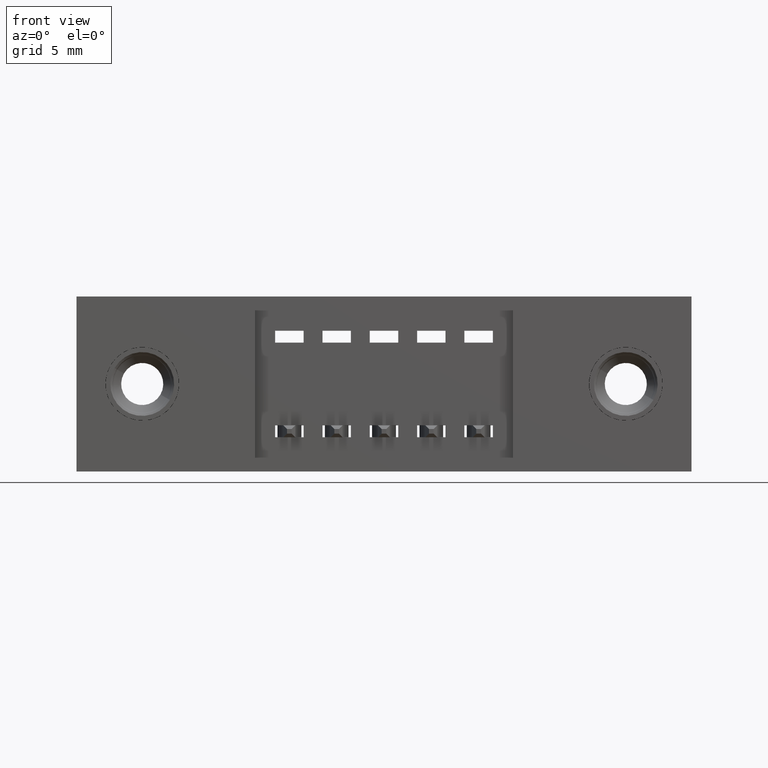
[diagram: clean part render]
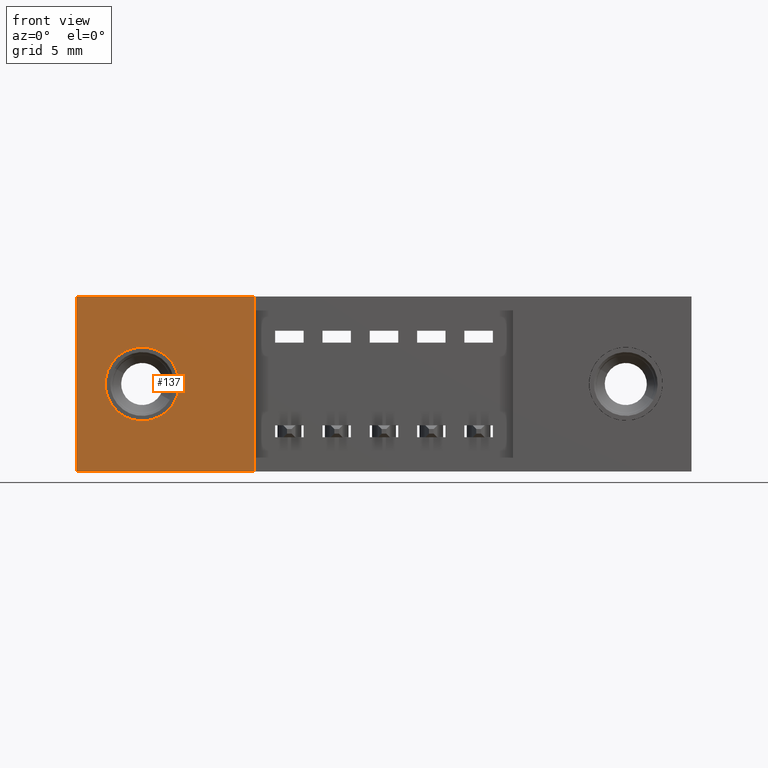
[diagram: same view with one face highlighted and labeled with its STEP entity id]
A machine part, front view. The second image highlights one B-rep face of the part: STEP entity #137.
In plain terms, the highlighted planar face has unit normal (0, -1, 0).
Its self-contained STEP definition (entity closure, byte-faithful):
#94 = LINE ( 'NONE', #6822, #7232 ) ;
#121 = EDGE_CURVE ( 'NONE', #614, #8031, #5915, .T. ) ;
#137 = ADVANCED_FACE ( 'NONE', ( #7467, #618 ), #7988, .T. ) ;
#232 = EDGE_CURVE ( 'NONE', #3549, #614, #737, .T. ) ;
#269 = CARTESIAN_POINT ( 'NONE',  ( 0.3770000000000000600, 0.0000000000000000000, 0.0000000000000000000 ) ) ;
#417 = EDGE_CURVE ( 'NONE', #3968, #3549, #1947, .T. ) ;
#456 = DIRECTION ( 'NONE',  ( 0.0000000000000000000, -0.0000000000000000000, -1.000000000000000000 ) ) ;
#545 = DIRECTION ( 'NONE',  ( 0.0000000000000000000, 1.000000000000000000, 0.0000000000000000000 ) ) ;
#614 = VERTEX_POINT ( 'NONE', #6757 ) ;
#618 = FACE_OUTER_BOUND ( 'NONE', #2394, .T. ) ;
#737 = LINE ( 'NONE', #7717, #8003 ) ;
#829 = EDGE_CURVE ( 'NONE', #8031, #3968, #94, .T. ) ;
#892 = ORIENTED_EDGE ( 'NONE', *, *, #829, .F. ) ;
#1947 = LINE ( 'NONE', #5838, #7049 ) ;
#2150 = CARTESIAN_POINT ( 'NONE',  ( 0.1390000000000000100, 0.0000000000000000000, -0.1850000000000000000 ) ) ;
#2394 = EDGE_LOOP ( 'NONE', ( #7018, #892, #3475, #4116 ) ) ;
#2828 = DIRECTION ( 'NONE',  ( 0.0000000000000000000, 0.0000000000000000000, 1.000000000000000000 ) ) ;
#3325 = DIRECTION ( 'NONE',  ( 0.0000000000000000000, -1.000000000000000000, 0.0000000000000000000 ) ) ;
#3435 = DIRECTION ( 'NONE',  ( -0.0000000000000000000, -0.0000000000000000000, -1.000000000000000000 ) ) ;
#3475 = ORIENTED_EDGE ( 'NONE', *, *, #121, .F. ) ;
#3549 = VERTEX_POINT ( 'NONE', #7531 ) ;
#3866 = VERTEX_POINT ( 'NONE', #7762 ) ;
#3908 = CARTESIAN_POINT ( 'NONE',  ( 0.1390000000000000400, 0.0000000000000000000, -0.2630000000000000100 ) ) ;
#3968 = VERTEX_POINT ( 'NONE', #269 ) ;
#3992 = CARTESIAN_POINT ( 'NONE',  ( 0.0000000000000000000, 0.0000000000000000000, -0.3700000000000000000 ) ) ;
#4035 = ORIENTED_EDGE ( 'NONE', *, *, #8430, .T. ) ;
#4116 = ORIENTED_EDGE ( 'NONE', *, *, #232, .F. ) ;
#4143 = VECTOR ( 'NONE', #6693, 39.37007874015748100 ) ;
#4369 = AXIS2_PLACEMENT_3D ( 'NONE', #4751, #545, #5416 ) ;
#4485 = ORIENTED_EDGE ( 'NONE', *, *, #8500, .T. ) ;
#4751 = CARTESIAN_POINT ( 'NONE',  ( 0.1390000000000000100, 0.0000000000000000000, -0.1850000000000000000 ) ) ;
#4948 = DIRECTION ( 'NONE',  ( -1.000000000000000000, -0.0000000000000000000, -0.0000000000000000000 ) ) ;
#5098 = CIRCLE ( 'NONE', #4369, 0.07800000000000001400 ) ;
#5257 = CARTESIAN_POINT ( 'NONE',  ( 0.0000000000000000000, 0.0000000000000000000, 0.0000000000000000000 ) ) ;
#5416 = DIRECTION ( 'NONE',  ( 0.0000000000000000000, 0.0000000000000000000, 1.000000000000000000 ) ) ;
#5799 = AXIS2_PLACEMENT_3D ( 'NONE', #3992, #3325, #456 ) ;
#5838 = CARTESIAN_POINT ( 'NONE',  ( 0.3770000000000000600, 0.0000000000000000000, -0.3700000000000000000 ) ) ;
#5915 = LINE ( 'NONE', #5257, #4143 ) ;
#6030 = DIRECTION ( 'NONE',  ( 1.000000000000000000, 0.0000000000000000000, 0.0000000000000000000 ) ) ;
#6616 = AXIS2_PLACEMENT_3D ( 'NONE', #2150, #6825, #2828 ) ;
#6693 = DIRECTION ( 'NONE',  ( -0.0000000000000000000, -0.0000000000000000000, 1.000000000000000000 ) ) ;
#6757 = CARTESIAN_POINT ( 'NONE',  ( 0.0000000000000000000, 0.0000000000000000000, -0.3700000000000000000 ) ) ;
#6822 = CARTESIAN_POINT ( 'NONE',  ( 0.0000000000000000000, 0.0000000000000000000, 0.0000000000000000000 ) ) ;
#6825 = DIRECTION ( 'NONE',  ( 0.0000000000000000000, 1.000000000000000000, 0.0000000000000000000 ) ) ;
#6933 = CARTESIAN_POINT ( 'NONE',  ( 0.0000000000000000000, 0.0000000000000000000, 0.0000000000000000000 ) ) ;
#7018 = ORIENTED_EDGE ( 'NONE', *, *, #417, .F. ) ;
#7049 = VECTOR ( 'NONE', #3435, 39.37007874015748100 ) ;
#7232 = VECTOR ( 'NONE', #6030, 39.37007874015748100 ) ;
#7467 = FACE_BOUND ( 'NONE', #7653, .T. ) ;
#7531 = CARTESIAN_POINT ( 'NONE',  ( 0.3770000000000000600, 0.0000000000000000000, -0.3700000000000000000 ) ) ;
#7653 = EDGE_LOOP ( 'NONE', ( #4485, #4035 ) ) ;
#7717 = CARTESIAN_POINT ( 'NONE',  ( 0.0000000000000000000, 0.0000000000000000000, -0.3700000000000000000 ) ) ;
#7762 = CARTESIAN_POINT ( 'NONE',  ( 0.1390000000000000100, 0.0000000000000000000, -0.1070000000000000000 ) ) ;
#7988 = PLANE ( 'NONE',  #5799 ) ;
#8003 = VECTOR ( 'NONE', #4948, 39.37007874015748100 ) ;
#8014 = CIRCLE ( 'NONE', #6616, 0.07800000000000001400 ) ;
#8031 = VERTEX_POINT ( 'NONE', #6933 ) ;
#8325 = VERTEX_POINT ( 'NONE', #3908 ) ;
#8430 = EDGE_CURVE ( 'NONE', #8325, #3866, #5098, .T. ) ;
#8500 = EDGE_CURVE ( 'NONE', #3866, #8325, #8014, .T. ) ;